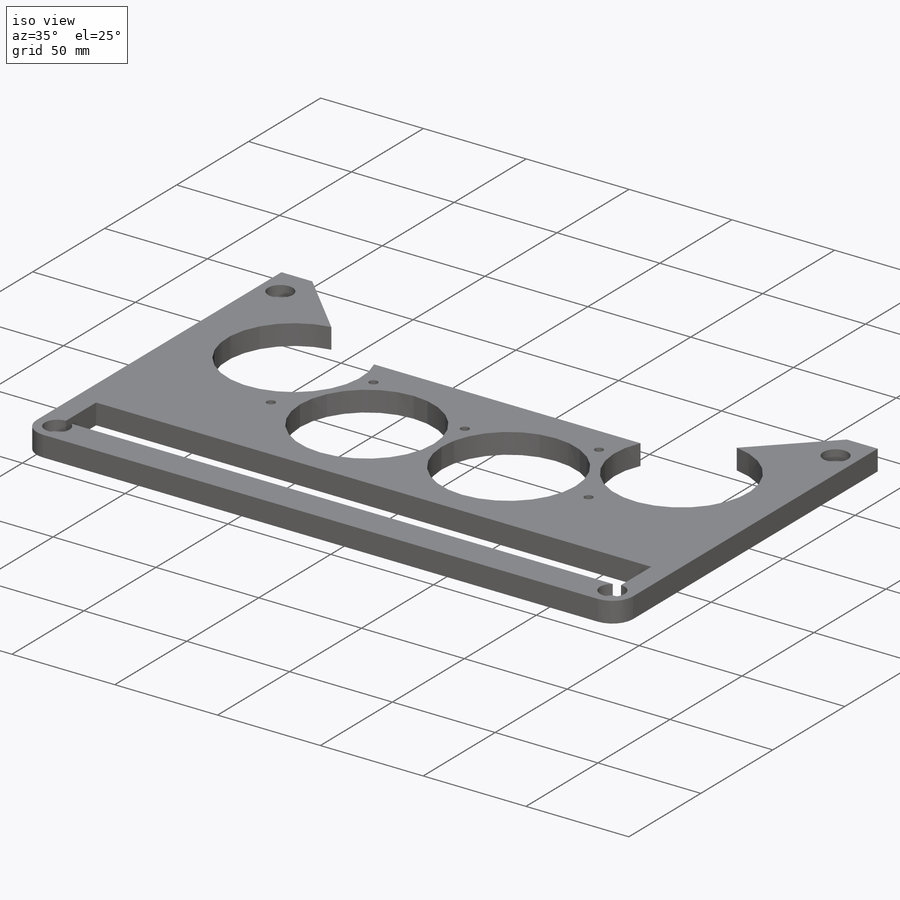
[diagram: iso view]
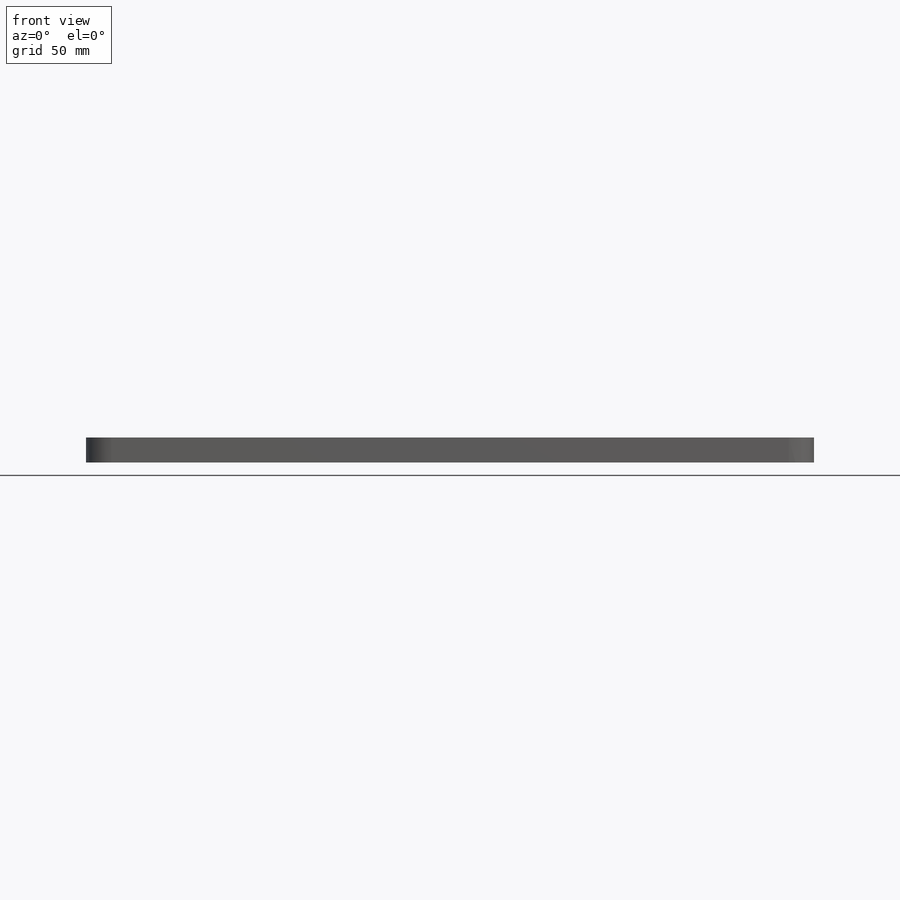
[diagram: front view]
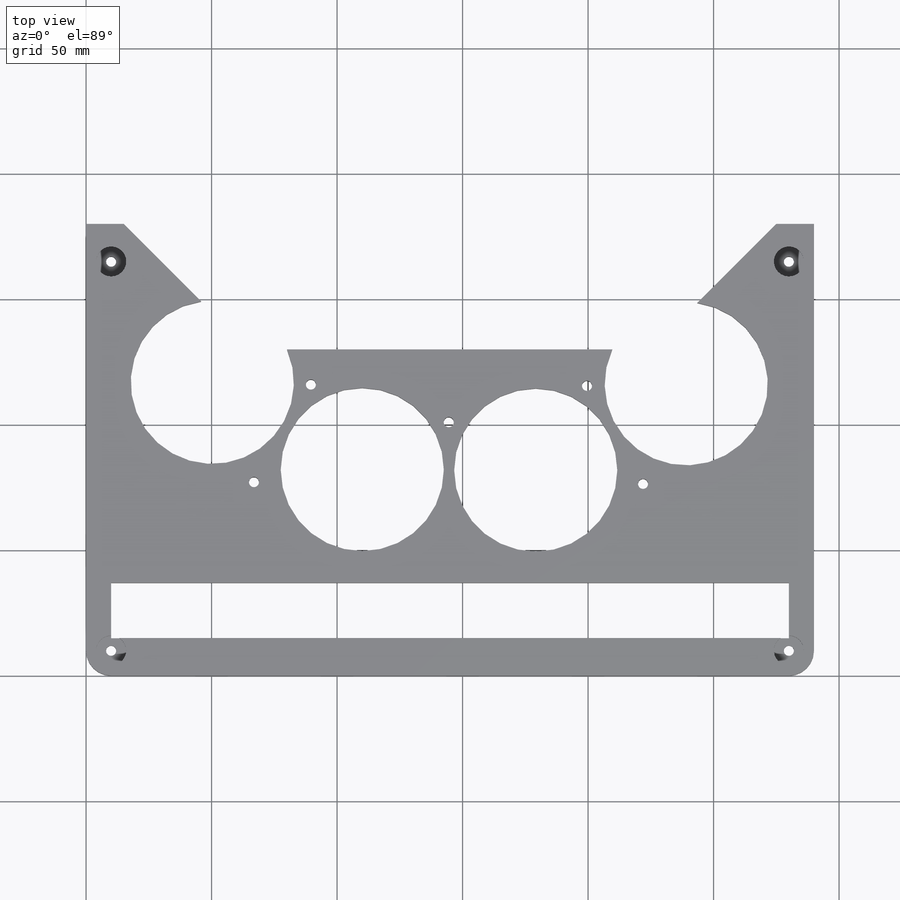
[diagram: top view]
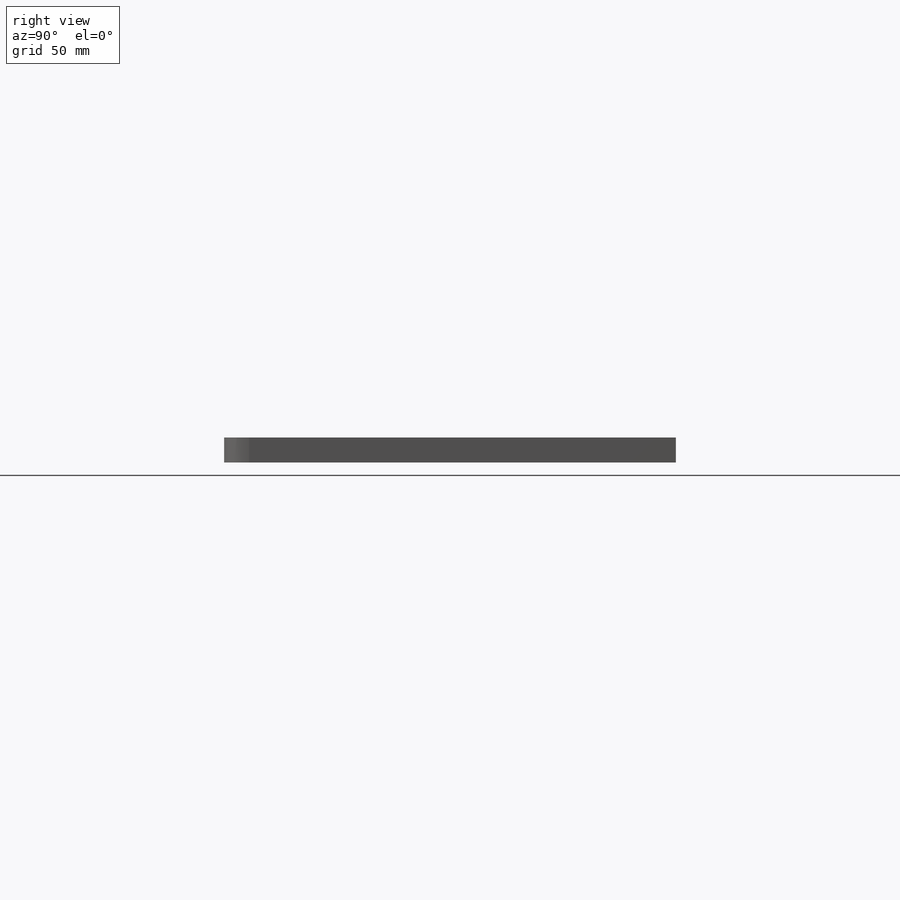
[diagram: right view]
SOLIDWORKS PART (.sldprt)
format: sldprt  version: not decoded by parser v0  size: 600,064 bytes
history: native  units: mm
features: sketch x7, cut_extrude x6, plane x4, material x1, extrude x1, fillet x1 (+8 scaffold rows collapsed)
feature tree (28):
  scaffold x8  (default folders/planes/origin — collapsed)
  material  "Acrylique (impact moyen-haut)"
  plane  "Plan de face"
  plane  "Plan de dessus"
  plane  "Plan de droite"
  sketch  "Esquisse2"  dims[c1.D10=4.0mm c1.D13=4.0mm c1.D16=4.0mm c1.D1=290.0mm c1.D2=290.0mm c1.D3=80.0mm c1.D4=65.0mm c1.D5=27.0mm c1.D6=20.0mm c1.D7=10.0mm c1.D8=43.0mm c1.D9=9.0mm c1.D11=74.0mm c2.D9=74.0mm c2.D11=8.0mm c2.D12=22.0mm c2.D14=36.0mm c2.D15=19.0mm c2.D3=15.0mm c2.D4=50.0mm c2.D5=130.0mm c2.D6=15.0mm c3.D6=135.0deg]
  extrude  "Boss.-Extru.1"  Depth=10mm
  sketch  "Esquisse3"  dims[c1.D3=4.0mm c1.D1=4.0mm c2.D3=4.0mm c2.D1=10.0mm c2.D2=10.0mm c3.D3=10.0mm]
  cut_extrude  "Enlèv. mat.-Extru.1"  Depth=10mm
  fillet  "Congé1"  Radius=10mm
  sketch  "Esquisse4"  dims[D1=65.0mm]
  cut_extrude  "Enlèv. mat.-Extru.2"  Depth=10mm
  sketch  "Esquisse5"
  cut_extrude  "Enlèv. mat.-Extru.3"  Depth=10mm
  sketch  "Esquisse6"  dims[c1.D3=4.0mm c1.D1=22.0mm c1.D2=270.0mm c2.D3=5.0mm]
  cut_extrude  "Enlèv. mat.-Extru.4"  Depth=10mm
  sketch  "Esquisse7"  dims[c1.D1=4.0mm c1.D3=4.0mm c1.D2=15.0mm c2.D3=10.0mm]
  cut_extrude  "Enlèv. mat.-Extru.5"  Depth=10mm
  plane  "Plan1"  Offset=5mm
  sketch  "Esquisse10"  dims[D1=12.0mm]
  cut_extrude  "Enlèv. mat.-Extru.6"  Depth=5mm
decode coverage: 14 of 15 modeling features carry decoded parameters
note: suppression state not decoded; provenance and decode notes live in map.json
